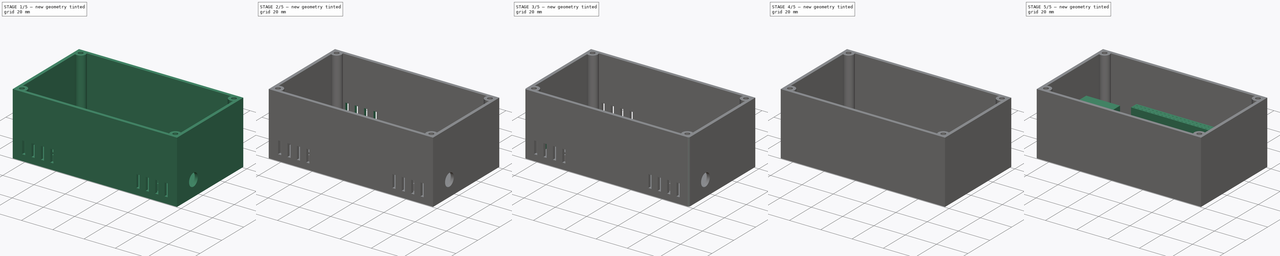
[diagram: build sequence overview — one tinted view per stage of 5, left to right]
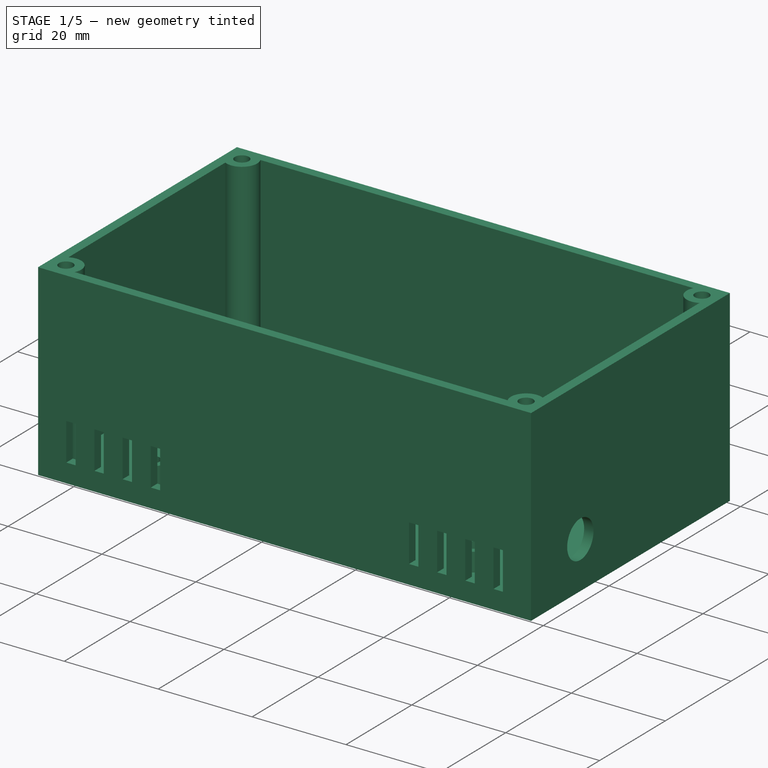
[diagram: stage 1 of 5 — iso view after this stage's code; geometry added in this stage tinted green]
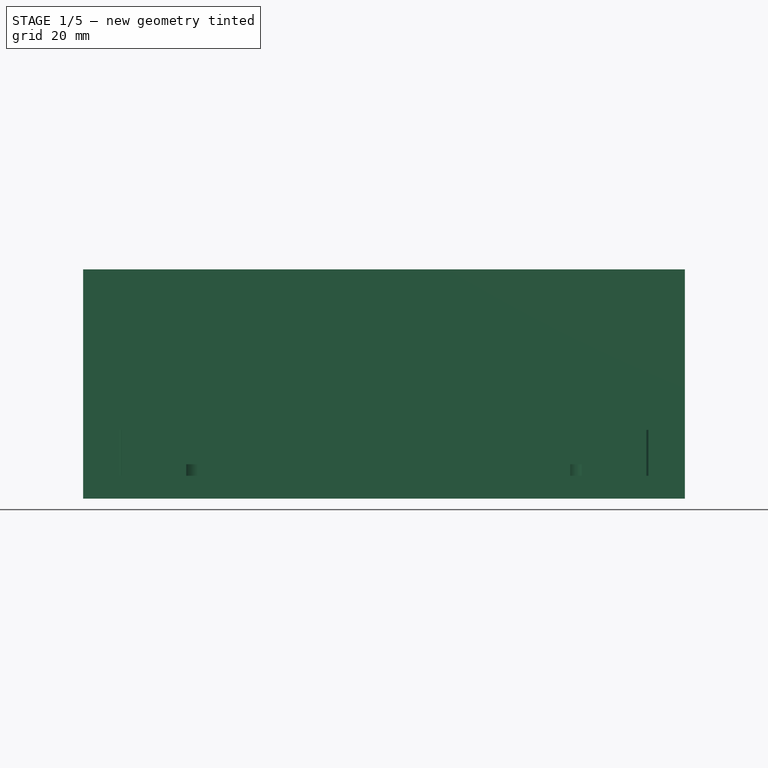
[diagram: stage 1 of 5 — front view after this stage's code; geometry added in this stage tinted green]
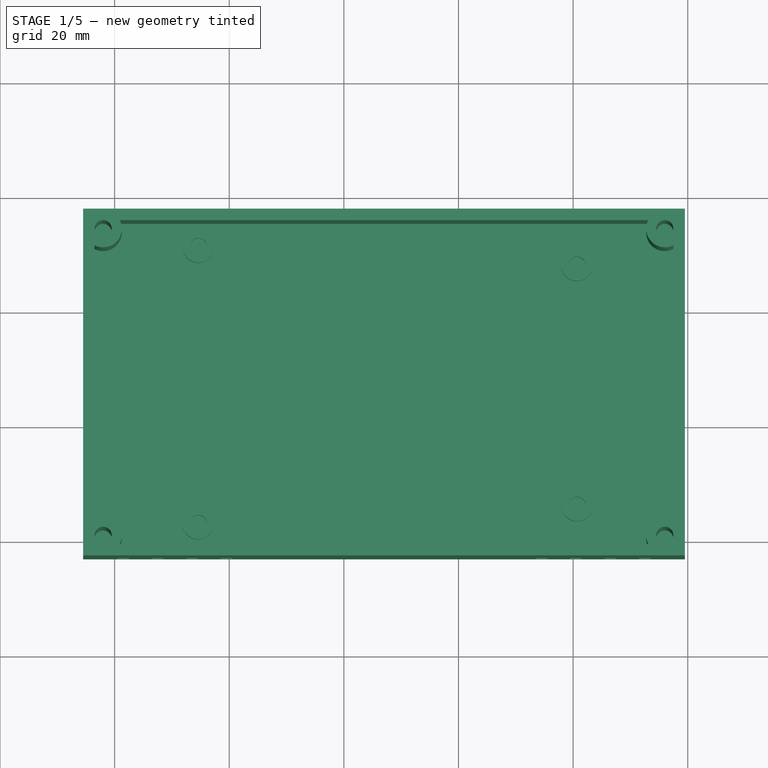
[diagram: stage 1 of 5 — top view after this stage's code; geometry added in this stage tinted green]
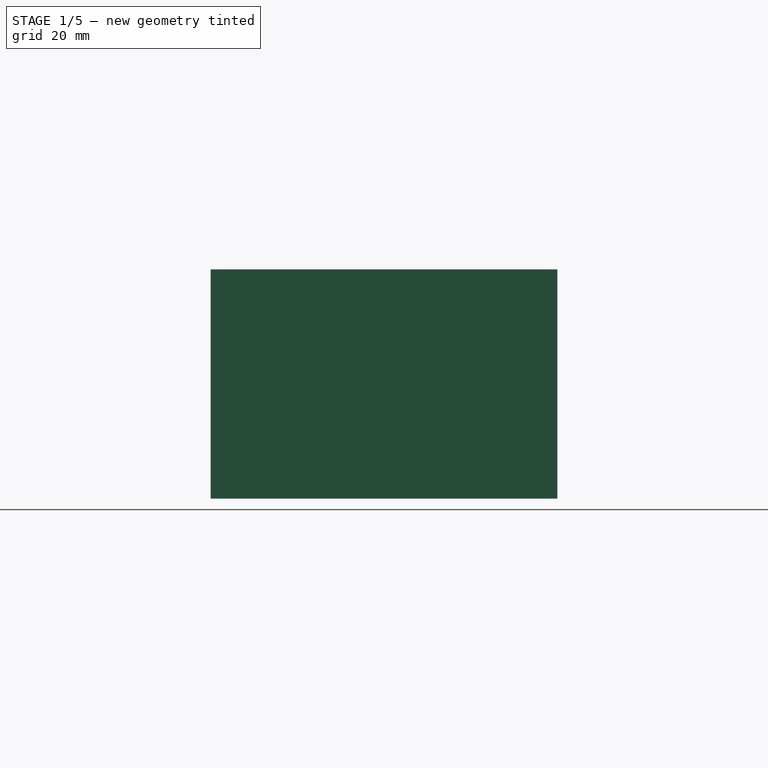
[diagram: stage 1 of 5 — right view after this stage's code; geometry added in this stage tinted green]
FCSTD DOCUMENT
Label: levelingglass_case_prototype
objects: Sketcher::SketchObject×11, PartDesign::Pad×7, PartDesign::Fillet×5, PartDesign::Pocket×4, Part::Feature×2, Part::MultiFuse×1
note: 41 computed .brp shape members not serialized (recipe doc carries the construction recipe); baked Part::Feature solids carry a one-line shape summary decoded from their .brp

FEATURE [Part::Feature] Part__Feature  label="Audio_Cape"
  Placement = pos=(0,0,16) rot=(0,0,1;0rad)
  shape: bbox 89.36 x 54.61 x 8.509 mm, 2185 faces (baked)
FEATURE [Sketcher::SketchObject] Sketch006
  Placement = pos=(0,0,2) rot=(0,0,1;0rad)
  sketch-geometry (8):
    g0: Circle CenterX=-2 CenterY=54 CenterZ=0 NormalX=0 NormalY=0 NormalZ=1 Radius=1.5
    g1: Circle CenterX=96 CenterY=54 CenterZ=0 NormalX=0 NormalY=0 NormalZ=1 Radius=1.5
    g2: Circle CenterX=-2 CenterY=0.5 CenterZ=0 NormalX=0 NormalY=0 NormalZ=1 Radius=1.5
    g3: Circle CenterX=96 CenterY=0.5 CenterZ=0 NormalX=0 NormalY=0 NormalZ=1 Radius=1.5
    g4: Circle CenterX=-2 CenterY=54 CenterZ=0 NormalX=0 NormalY=0 NormalZ=1 Radius=3.25
    g5: Circle CenterX=96 CenterY=54 CenterZ=0 NormalX=0 NormalY=0 NormalZ=1 Radius=3.25
    g6: Circle CenterX=-2 CenterY=0.5 CenterZ=0 NormalX=0 NormalY=0 NormalZ=1 Radius=3.25
    g7: Circle CenterX=96 CenterY=0.5 CenterZ=0 NormalX=0 NormalY=0 NormalZ=1 Radius=3.25
  constraints (20):
    c: Radius(g0) = 1.5
    c: Tangent(g0,g-4)
    c: Tangent(g0,g-3)
    c: Radius(g1) = 1.5
    c: Tangent(g1,g-3)
    c: Tangent(g1,g-6)
    c: Radius(g2) = 1.5
    c: Tangent(g2,g-4)
    c: Tangent(g2,g-5)
    c: Radius(g3) = 1.5
    c: Tangent(g3,g-6)
    c: Tangent(g3,g-5)
    c: Radius(g4) = 3.25
    c: Coincident(g4,g0)
    c: Radius(g5) = 3.25
    c: Coincident(g5,g1)
    c: Radius(g6) = 3.25
    c: Coincident(g6,g2)
    c: Radius(g7) = 3.25
    c: Coincident(g3,g7)
FEATURE [PartDesign::Pad] Pad004  label="Lid Support Bosses"
  Length = 38
  Length2 = 100
  Sketch = -> Sketch006
  Type = 0
FEATURE [Part::Feature] Part__Feature001  label="HR10A-7R-4SB"
  Placement = pos=(93.5,12,10) rot=(0,0,-1;1.5708rad)
  shape: bbox 15.6 x 11.55 x 11.55 mm, 257 faces (baked)
FEATURE [Sketcher::SketchObject] Sketch007
  ExternalGeometry = -> [Pad004]
  Placement = pos=(99.5,0,0) rot=(0.57735,0.57735,0.57735;2.0944rad)
  Support = -> Pad004 [Face3]
  sketch-geometry (1):
    g0: Circle CenterX=12 CenterY=10 CenterZ=0 NormalX=0 NormalY=0 NormalZ=1 Radius=4
  constraints (3):
    c: Radius(g0) = 4
    c: DistanceY(g-1,g0) = 10
    c: Distance(g0,g-3) = 15
FEATURE [PartDesign::Pocket] Pocket001  label="Power Hole"
  Length = 2
  Sketch = -> Sketch007
  Type = 0
FEATURE [Sketcher::SketchObject] Sketch008
  ExternalGeometry = -> [Pocket001]
  Placement = pos=(0,-3,0) rot=(1,0,0;1.5708rad)
  Support = -> Pocket001 [Face10]
  sketch-geometry (38):
    g0: LineSegment StartX=0.5 StartY=12 StartZ=0 EndX=2.5 EndY=12 EndZ=0
    g1: LineSegment StartX=2.5 StartY=12 StartZ=0 EndX=2.5 EndY=4 EndZ=0
    g2: LineSegment StartX=2.5 StartY=4 StartZ=0 EndX=0.5 EndY=4 EndZ=0
    g3: LineSegment StartX=0.5 StartY=4 StartZ=0 EndX=0.5 EndY=12 EndZ=0
    g4: LineSegment StartX=6.5 StartY=12 StartZ=0 EndX=8.5 EndY=12 EndZ=0
    g5: LineSegment StartX=8.5 StartY=12 StartZ=0 EndX=8.5 EndY=4 EndZ=0
    g6: LineSegment StartX=8.5 StartY=4 StartZ=0 EndX=6.5 EndY=4 EndZ=0
    g7: LineSegment StartX=6.5 StartY=4 StartZ=0 EndX=6.5 EndY=12 EndZ=0
    g8: LineSegment StartX=12.5 StartY=12 StartZ=0 EndX=14.5 EndY=12 EndZ=0
    g9: LineSegment StartX=14.5 StartY=12 StartZ=0 EndX=14.5 EndY=4 EndZ=0
    g10: LineSegment StartX=14.5 StartY=4 StartZ=0 EndX=12.5 EndY=4 EndZ=0
    g11: LineSegment StartX=12.5 StartY=4 StartZ=0 EndX=12.5 EndY=12 EndZ=0
    g12: LineSegment StartX=18.5 StartY=12 StartZ=0 EndX=20.5 EndY=12 EndZ=0
    g13: LineSegment StartX=20.5 StartY=12 StartZ=0 EndX=20.5 EndY=4 EndZ=0
    g14: LineSegment StartX=20.5 StartY=4 StartZ=0 EndX=18.5 EndY=4 EndZ=0
    g15: LineSegment StartX=18.5 StartY=4 StartZ=0 EndX=18.5 EndY=12 EndZ=0
    g16: LineSegment [constr] StartX=2.5 StartY=4 StartZ=0 EndX=6.5 EndY=4 EndZ=0
    g17: LineSegment [constr] StartX=8.5 StartY=4 StartZ=0 EndX=12.5 EndY=4 EndZ=0
    g18: LineSegment [constr] StartX=14.5 StartY=4 StartZ=0 EndX=18.5 EndY=4 EndZ=0
    g19: LineSegment StartX=73.5 StartY=12 StartZ=0 EndX=75.5 EndY=12 EndZ=0
    g20: LineSegment StartX=75.5 StartY=12 StartZ=0 EndX=75.5 EndY=4 EndZ=0
    g21: LineSegment StartX=75.5 StartY=4 StartZ=0 EndX=73.5 EndY=4 EndZ=0
    g22: LineSegment StartX=73.5 StartY=4 StartZ=0 EndX=73.5 EndY=12 EndZ=0
    g23: LineSegment StartX=79.5 StartY=12 StartZ=0 EndX=81.5 EndY=12 EndZ=0
    g24: LineSegment StartX=81.5 StartY=12 StartZ=0 EndX=81.5 EndY=4 EndZ=0
    g25: LineSegment StartX=81.5 StartY=4 StartZ=0 EndX=79.5 EndY=4 EndZ=0
    g26: LineSegment StartX=79.5 StartY=4 StartZ=0 EndX=79.5 EndY=12 EndZ=0
    g27: LineSegment StartX=85.5 StartY=12 StartZ=0 EndX=87.5 EndY=12 EndZ=0
    g28: LineSegment StartX=87.5 StartY=12 StartZ=0 EndX=87.5 EndY=4 EndZ=0
    g29: LineSegment StartX=87.5 StartY=4 StartZ=0 EndX=85.5 EndY=4 EndZ=0
    g30: LineSegment StartX=85.5 StartY=4 StartZ=0 EndX=85.5 EndY=12 EndZ=0
    g31: LineSegment StartX=91.5 StartY=12 StartZ=0 EndX=93.5 EndY=12 EndZ=0
    g32: LineSegment StartX=93.5 StartY=12 StartZ=0 EndX=93.5 EndY=4 EndZ=0
    g33: LineSegment StartX=93.5 StartY=4 StartZ=0 EndX=91.5 EndY=4 EndZ=0
    g34: LineSegment StartX=91.5 StartY=4 StartZ=0 EndX=91.5 EndY=12 EndZ=0
    g35: LineSegment [constr] StartX=87.5 StartY=4 StartZ=0 EndX=91.5 EndY=4 EndZ=0
    g36: LineSegment [constr] StartX=75.5 StartY=4 StartZ=0 EndX=79.5 EndY=4 EndZ=0
    g37: LineSegment [constr] StartX=81.5 StartY=4 StartZ=0 EndX=85.5 EndY=4 EndZ=0
  constraints (108):
    c: Coincident(g0,g1)
    c: Coincident(g1,g2)
    c: Coincident(g2,g3)
    c: Coincident(g3,g0)
    c: Horizontal(g0)
    c: Horizontal(g2)
    c: Vertical(g1)
    c: Vertical(g3)
    c: Coincident(g4,g5)
    c: Coincident(g5,g6)
    c: Coincident(g6,g7)
    c: Coincident(g7,g4)
    c: Horizontal(g4)
    c: Horizontal(g6)
    c: Vertical(g5)
    c: Vertical(g7)
    c: Coincident(g8,g9)
    c: Coincident(g9,g10)
    c: Coincident(g10,g11)
    c: Coincident(g11,g8)
    c: Horizontal(g8)
    c: Horizontal(g10)
    c: Vertical(g9)
    c: Vertical(g11)
    c: Coincident(g12,g13)
    c: Coincident(g13,g14)
    c: Coincident(g14,g15)
    c: Coincident(g15,g12)
    c: Horizontal(g12)
    c: Horizontal(g14)
    c: Vertical(g13)
    c: Vertical(g15)
    c: Equal(g0,g4)
    c: Equal(g4,g8)
    c: Equal(g8,g12)
    c: Equal(g3,g7)
    c: Equal(g7,g11)
    c: Equal(g11,g15)
    c: Distance(g2,g-5) = 2
    c: Distance(g2,g-3) = 6
    c: Parallel(g16,g18)
    c: Parallel(g18,g17)
    c: Parallel(g17,g-1)
    c: Equal(g16,g17)
    c: Equal(g17,g18)
    c: Distance(g16) = 4
    c: Coincident(g16,g1)
    c: Coincident(g6,g16)
    c: Coincident(g17,g5)
    c: DistanceX(g2) = -2
    c: Coincident(g10,g17)
    c: Distance(g3) = 8
    c: Coincident(g18,g9)
    c: Coincident(g18,g14)
    c: Coincident(g19,g20)
    c: Coincident(g20,g21)
    c: Coincident(g21,g22)
    c: Coincident(g22,g19)
    c: Horizontal(g19)
    c: Horizontal(g21)
    c: Vertical(g20)
    c: Vertical(g22)
    c: Coincident(g23,g24)
    c: Coincident(g24,g25)
    c: Coincident(g25,g26)
    c: Coincident(g26,g23)
    c: Horizontal(g23)
    c: Horizontal(g25)
    c: Vertical(g24)
    c: Vertical(g26)
    c: Coincident(g27,g28)
    c: Coincident(g28,g29)
    c: Coincident(g29,g30)
    c: Coincident(g30,g27)
    c: Horizontal(g27)
    c: Horizontal(g29)
    c: Vertical(g28)
    c: Vertical(g30)
    c: Coincident(g31,g32)
    c: Coincident(g32,g33)
    c: Coincident(g33,g34)
    c: Coincident(g34,g31)
    c: Horizontal(g31)
    c: Horizontal(g33)
    c: Vertical(g32)
    c: Vertical(g34)
    c: Equal(g22,g26)
    c: Equal(g26,g30)
    c: Equal(g30,g34)
    c: Equal(g34,g3)
    c: Equal(g21,g25)
    c: Equal(g25,g29)
    c: Equal(g29,g33)
    c: Equal(g33,g2)
    c: Distance(g32,g-4) = 6
    c: Distance(g32,g-5) = 2
    c: Equal(g35,g36)
    c: Equal(g36,g37)
    c: Equal(g37,g16)
    c: Parallel(g35,g36)
    c: Parallel(g36,g37)
    c: Parallel(g37,g-1)
    c: Coincident(g35,g33)
    c: Coincident(g28,g35)
    c: Coincident(g37,g29)
    c: Coincident(g24,g37)
    c: Coincident(g36,g25)
    c: Coincident(g20,g36)
FEATURE [PartDesign::Pocket] Pocket002  label="Front Vents"
  Length = 2
  Sketch = -> Sketch008
  Type = 0
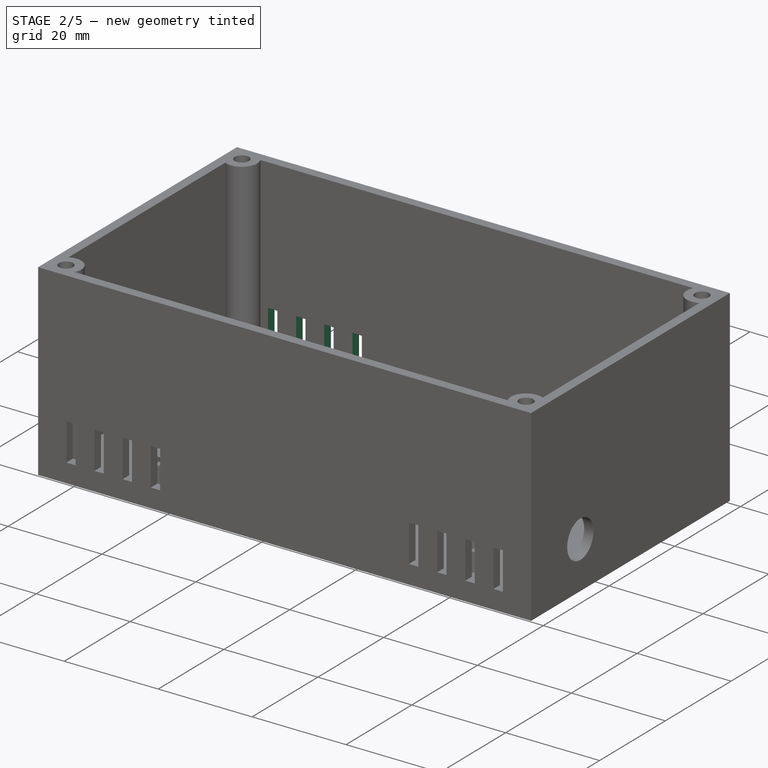
[diagram: stage 2 of 5 — iso view after this stage's code; geometry added in this stage tinted green]
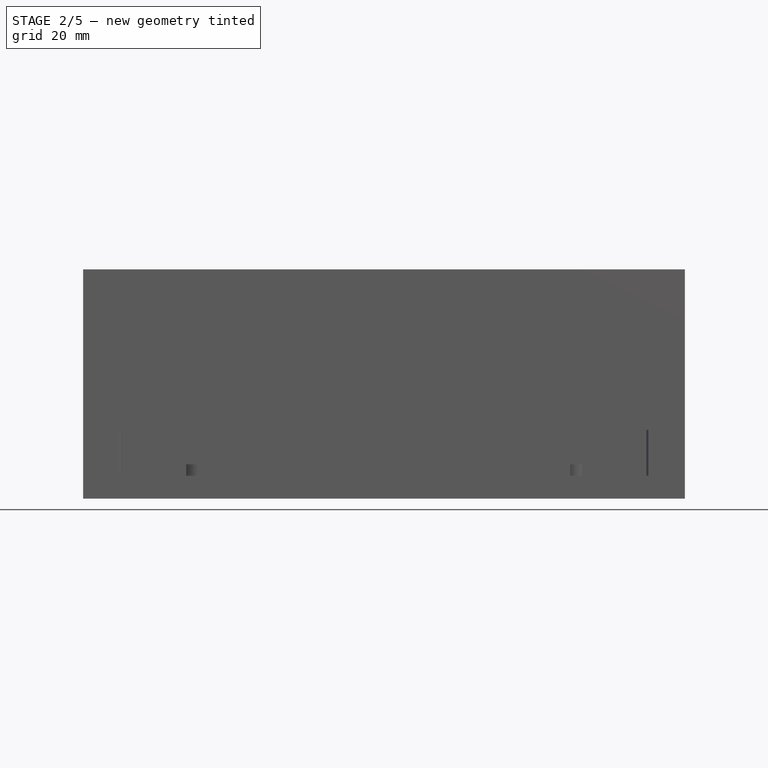
[diagram: stage 2 of 5 — front view after this stage's code; geometry added in this stage tinted green]
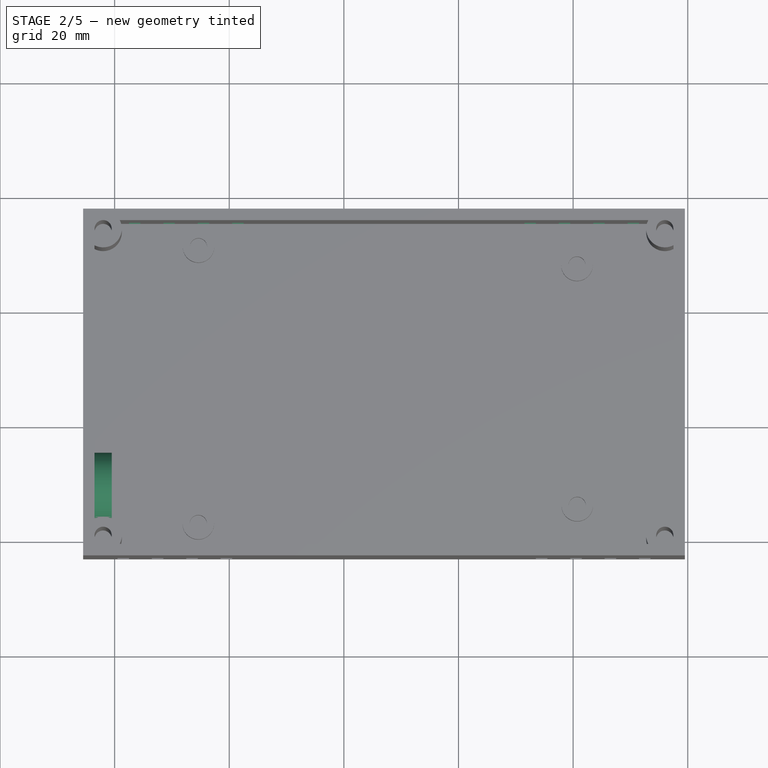
[diagram: stage 2 of 5 — top view after this stage's code; geometry added in this stage tinted green]
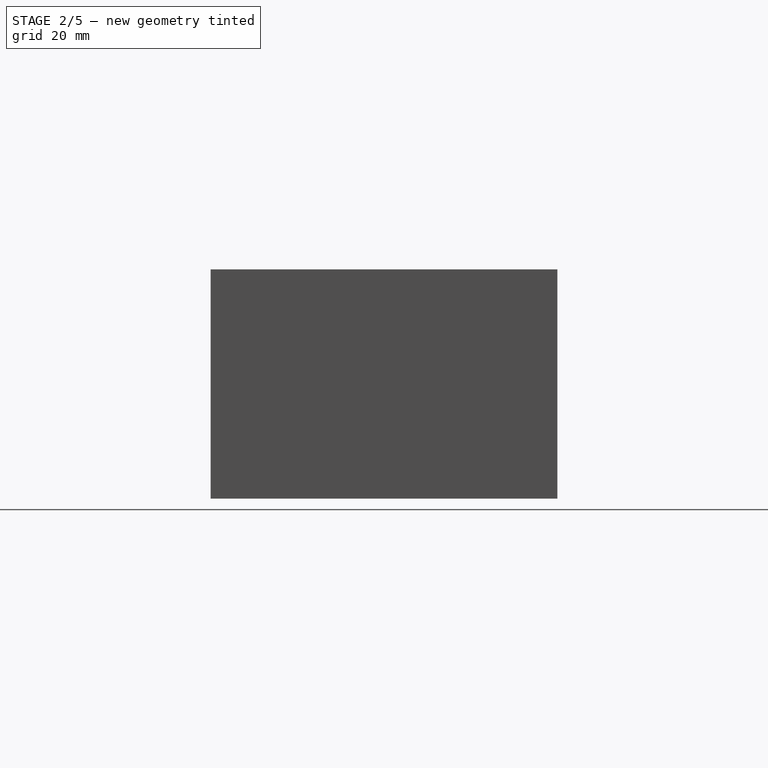
[diagram: stage 2 of 5 — right view after this stage's code; geometry added in this stage tinted green]
FEATURE [Sketcher::SketchObject] Sketch009
  ExternalGeometry = -> [Pocket001]
  Placement = pos=(0,57.5,0) rot=(0,0.707107,0.707107;3.14159rad)
  Support = -> Pocket002 [Face1]
  sketch-geometry (38):
    g0: LineSegment StartX=-22.5 StartY=12 StartZ=0 EndX=-20.5 EndY=12 EndZ=0
    g1: LineSegment StartX=-20.5 StartY=12 StartZ=0 EndX=-20.5 EndY=4 EndZ=0
    g2: LineSegment StartX=-20.5 StartY=4 StartZ=0 EndX=-22.5 EndY=4 EndZ=0
    g3: LineSegment StartX=-22.5 StartY=4 StartZ=0 EndX=-22.5 EndY=12 EndZ=0
    g4: LineSegment StartX=-16.5 StartY=12 StartZ=0 EndX=-14.5 EndY=12 EndZ=0
    g5: LineSegment StartX=-14.5 StartY=12 StartZ=0 EndX=-14.5 EndY=4 EndZ=0
    g6: LineSegment StartX=-14.5 StartY=4 StartZ=0 EndX=-16.5 EndY=4 EndZ=0
    g7: LineSegment StartX=-16.5 StartY=4 StartZ=0 EndX=-16.5 EndY=12 EndZ=0
    g8: LineSegment StartX=-10.5 StartY=12 StartZ=0 EndX=-8.5 EndY=12 EndZ=0
    g9: LineSegment StartX=-8.5 StartY=12 StartZ=0 EndX=-8.5 EndY=4 EndZ=0
    g10: LineSegment StartX=-8.5 StartY=4 StartZ=0 EndX=-10.5 EndY=4 EndZ=0
    g11: LineSegment StartX=-10.5 StartY=4 StartZ=0 EndX=-10.5 EndY=12 EndZ=0
    g12: LineSegment StartX=-4.5 StartY=12 StartZ=0 EndX=-2.5 EndY=12 EndZ=0
    g13: LineSegment StartX=-2.5 StartY=12 StartZ=0 EndX=-2.5 EndY=4 EndZ=0
    g14: LineSegment StartX=-2.5 StartY=4 StartZ=0 EndX=-4.5 EndY=4 EndZ=0
    g15: LineSegment StartX=-4.5 StartY=4 StartZ=0 EndX=-4.5 EndY=12 EndZ=0
    g16: LineSegment [constr] StartX=-20.5 StartY=4 StartZ=0 EndX=-16.5 EndY=4 EndZ=0
    g17: LineSegment [constr] StartX=-14.5 StartY=4 StartZ=0 EndX=-10.5 EndY=4 EndZ=0
    g18: LineSegment [constr] StartX=-8.5 StartY=4 StartZ=0 EndX=-4.5 EndY=4 EndZ=0
    g19: LineSegment StartX=-91.5 StartY=12 StartZ=0 EndX=-89.5 EndY=12 EndZ=0
    g20: LineSegment StartX=-89.5 StartY=12 StartZ=0 EndX=-89.5 EndY=4 EndZ=0
    g21: LineSegment StartX=-89.5 StartY=4 StartZ=0 EndX=-91.5 EndY=4 EndZ=0
    g22: LineSegment StartX=-91.5 StartY=4 StartZ=0 EndX=-91.5 EndY=12 EndZ=0
    g23: LineSegment StartX=-85.5 StartY=12 StartZ=0 EndX=-83.5 EndY=12 EndZ=0
    g24: LineSegment StartX=-83.5 StartY=12 StartZ=0 EndX=-83.5 EndY=4 EndZ=0
    g25: LineSegment StartX=-83.5 StartY=4 StartZ=0 EndX=-85.5 EndY=4 EndZ=0
    g26: LineSegment StartX=-85.5 StartY=4 StartZ=0 EndX=-85.5 EndY=12 EndZ=0
    g27: LineSegment StartX=-79.5 StartY=12 StartZ=0 EndX=-77.5 EndY=12 EndZ=0
    g28: LineSegment StartX=-77.5 StartY=12 StartZ=0 EndX=-77.5 EndY=4 EndZ=0
    g29: LineSegment StartX=-77.5 StartY=4 StartZ=0 EndX=-79.5 EndY=4 EndZ=0
    g30: LineSegment StartX=-79.5 StartY=4 StartZ=0 EndX=-79.5 EndY=12 EndZ=0
    g31: LineSegment StartX=-73.5 StartY=12 StartZ=0 EndX=-71.5 EndY=12 EndZ=0
    g32: LineSegment StartX=-71.5 StartY=12 StartZ=0 EndX=-71.5 EndY=4 EndZ=0
    g33: LineSegment StartX=-71.5 StartY=4 StartZ=0 EndX=-73.5 EndY=4 EndZ=0
    g34: LineSegment StartX=-73.5 StartY=4 StartZ=0 EndX=-73.5 EndY=12 EndZ=0
    g35: LineSegment [constr] StartX=-83.5 StartY=4 StartZ=0 EndX=-79.5 EndY=4 EndZ=0
    g36: LineSegment [constr] StartX=-77.5 StartY=4 StartZ=0 EndX=-73.5 EndY=4 EndZ=0
    g37: LineSegment [constr] StartX=-89.5 StartY=4 StartZ=0 EndX=-85.5 EndY=4 EndZ=0
  constraints (108):
    c: Coincident(g0,g1)
    c: Coincident(g1,g2)
    c: Coincident(g2,g3)
    c: Coincident(g3,g0)
    c: Horizontal(g0)
    c: Horizontal(g2)
    c: Vertical(g1)
    c: Vertical(g3)
    c: Coincident(g4,g5)
    c: Coincident(g5,g6)
    c: Coincident(g6,g7)
    c: Coincident(g7,g4)
    c: Horizontal(g4)
    c: Horizontal(g6)
    c: Vertical(g5)
    c: Vertical(g7)
    c: Coincident(g8,g9)
    c: Coincident(g9,g10)
    c: Coincident(g10,g11)
    c: Coincident(g11,g8)
    c: Horizontal(g8)
    c: Horizontal(g10)
    c: Vertical(g9)
    c: Vertical(g11)
    c: Coincident(g12,g13)
    c: Coincident(g13,g14)
    c: Coincident(g14,g15)
    c: Coincident(g15,g12)
    c: Horizontal(g12)
    c: Horizontal(g14)
    c: Vertical(g13)
    c: Vertical(g15)
    c: Equal(g0,g4)
    c: Equal(g4,g8)
    c: Equal(g8,g12)
    c: Equal(g3,g7)
    c: Equal(g7,g11)
    c: Equal(g11,g15)
    c: Parallel(g16,g18)
    c: Parallel(g18,g17)
    c: Parallel(g17,g-1)
    c: Equal(g16,g17)
    c: Equal(g17,g18)
    c: Distance(g16) = 4
    c: Coincident(g16,g1)
    c: Coincident(g6,g16)
    c: Coincident(g17,g5)
    c: DistanceX(g2) = -2
    c: Coincident(g10,g17)
    c: Distance(g3) = 8
    c: Coincident(g18,g9)
    c: Coincident(g18,g14)
    c: Distance(g13,g-3) = 8
    c: Distance(g13,g-5) = 2
    c: Coincident(g19,g20)
    c: Coincident(g20,g21)
    c: Coincident(g21,g22)
    c: Coincident(g22,g19)
    c: Horizontal(g19)
    c: Horizontal(g21)
    c: Vertical(g20)
    c: Vertical(g22)
    c: Coincident(g23,g24)
    c: Coincident(g24,g25)
    c: Coincident(g25,g26)
    c: Coincident(g26,g23)
    c: Horizontal(g23)
    c: Horizontal(g25)
    c: Vertical(g24)
    c: Vertical(g26)
    c: Coincident(g27,g28)
    c: Coincident(g28,g29)
    c: Coincident(g29,g30)
    c: Coincident(g30,g27)
    c: Horizontal(g27)
    c: Horizontal(g29)
    c: Vertical(g28)
    c: Vertical(g30)
    c: Coincident(g31,g32)
    c: Coincident(g32,g33)
    c: Coincident(g33,g34)
    c: Coincident(g34,g31)
    c: Horizontal(g31)
    c: Horizontal(g33)
    c: Vertical(g32)
    c: Vertical(g34)
    c: Equal(g3,g32)
    c: Equal(g32,g28)
    c: Equal(g28,g24)
    c: Equal(g24,g20)
    c: Equal(g33,g2)
    c: Equal(g2,g29)
    c: Equal(g29,g25)
    c: Equal(g25,g21)
    c: Distance(g21,g-4) = 8
    c: Distance(g21,g-5) = 2
    c: Parallel(g37,g35)
    c: Parallel(g35,g36)
    c: Parallel(g36,g-1)
    c: Equal(g37,g35)
    c: Equal(g35,g36)
    c: Equal(g36,g16)
    c: Coincident(g20,g37)
    c: Coincident(g25,g37)
    c: Coincident(g35,g24)
    c: Coincident(g29,g35)
    c: Coincident(g36,g28)
    c: Coincident(g36,g33)
FEATURE [PartDesign::Pocket] Pocket003  label="Rear Vents"
  Length = 2
  Sketch = -> Sketch009
  Type = 0
FEATURE [Sketcher::SketchObject] Sketch010
  ExternalGeometry = -> [Pocket003]
  Placement = pos=(-5.5,0,0) rot=(0.57735,-0.57735,-0.57735;2.0944rad)
  Support = -> Pocket003 [Face9]
  sketch-geometry (1):
    g0: Circle CenterX=-9 CenterY=20.25 CenterZ=0 NormalX=0 NormalY=0 NormalZ=1 Radius=4.25
  constraints (3):
    c: Radius(g0) = 4.25
    c: DistanceY(g-1,g0) = 20.25
    c: Distance(g0,g-4) = 12
FEATURE [PartDesign::Pocket] Pocket004  label="Jack Cutout"
  Length = 2
  Sketch = -> Sketch010
  Type = 0
FEATURE [Sketcher::SketchObject] Sketch011
  ExternalGeometry = -> [Pocket004]
  Placement = pos=(-3.5,0,0) rot=(0.57735,0.57735,0.57735;2.0944rad)
  Support = -> Pocket004 [Face47]
  sketch-geometry (2):
    g0: Circle CenterX=9 CenterY=20.25 CenterZ=0 NormalX=0 NormalY=0 NormalZ=1 Radius=4.25
    g1: Circle CenterX=9 CenterY=20.25 CenterZ=0 NormalX=0 NormalY=0 NormalZ=1 Radius=6.25
  constraints (4):
    c: Coincident(g0,g-3)
    c: Equal(g0,g-3)
    c: Coincident(g1,g0)
    c: Radius(g1) = 6.25
FEATURE [PartDesign::Pad] Pad005  label="Jack Collar"
  Length = 3
  Length2 = 100
  Sketch = -> Sketch011
  Type = 0
FEATURE [Sketcher::SketchObject] Sketch012
  ExternalGeometry = -> [Pad005]
  Placement = pos=(-0.5,0,0) rot=(0.57735,0.57735,0.57735;2.0944rad)
  Support = -> Pad005 [Face106]
  sketch-geometry (2):
    g0: Circle CenterX=9 CenterY=20.25 CenterZ=0 NormalX=0 NormalY=0 NormalZ=1 Radius=4.25
    g1: Circle CenterX=9 CenterY=20.25 CenterZ=0 NormalX=0 NormalY=0 NormalZ=1 Radius=2.75
  constraints (4):
    c: Coincident(g-3,g0)
    c: Equal(g-3,g0)
    c: Coincident(g1,g-3)
    c: Radius(g1) = 2.75
FEATURE [PartDesign::Pad] Pad006  label="Jack Hole"
  Length = 2
  Length2 = 100
  Reversed = true
  Sketch = -> Sketch012
  Type = 0
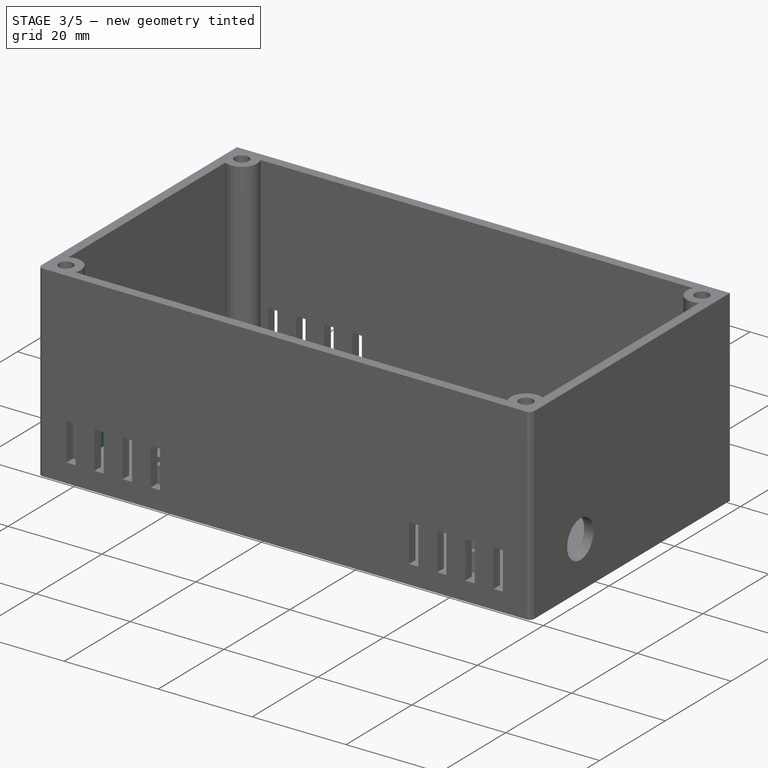
[diagram: stage 3 of 5 — iso view after this stage's code; geometry added in this stage tinted green]
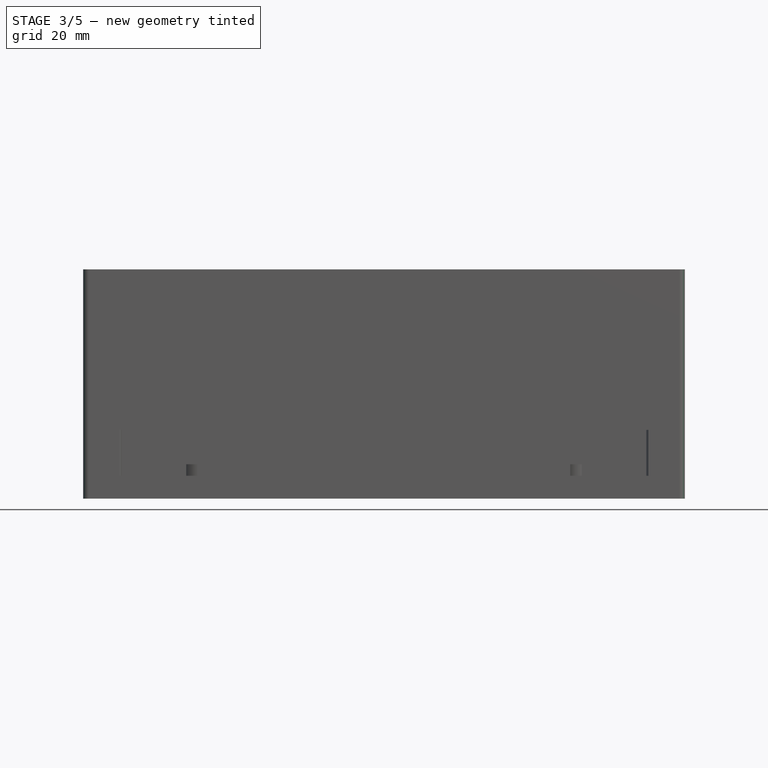
[diagram: stage 3 of 5 — front view after this stage's code; geometry added in this stage tinted green]
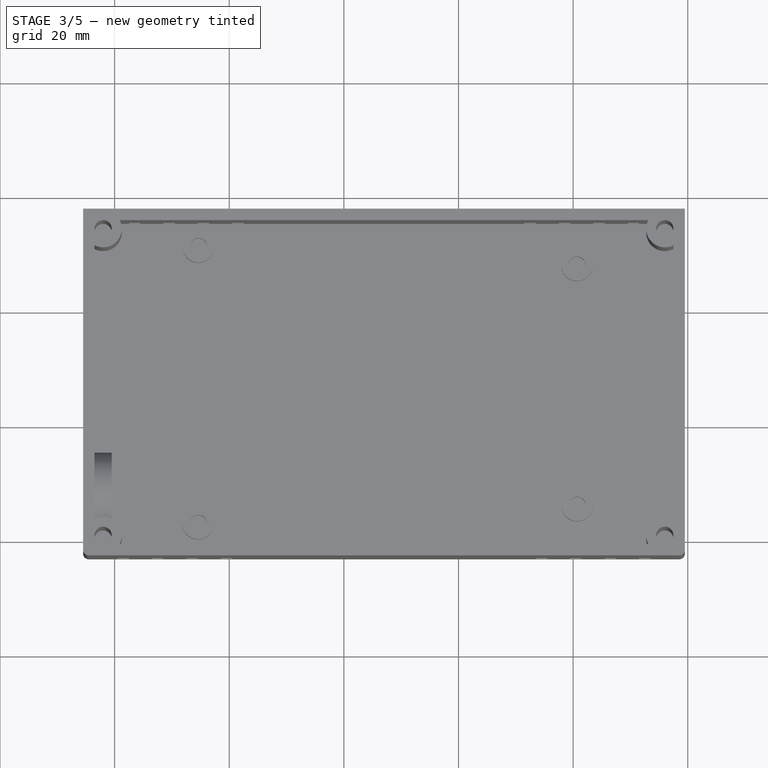
[diagram: stage 3 of 5 — top view after this stage's code; geometry added in this stage tinted green]
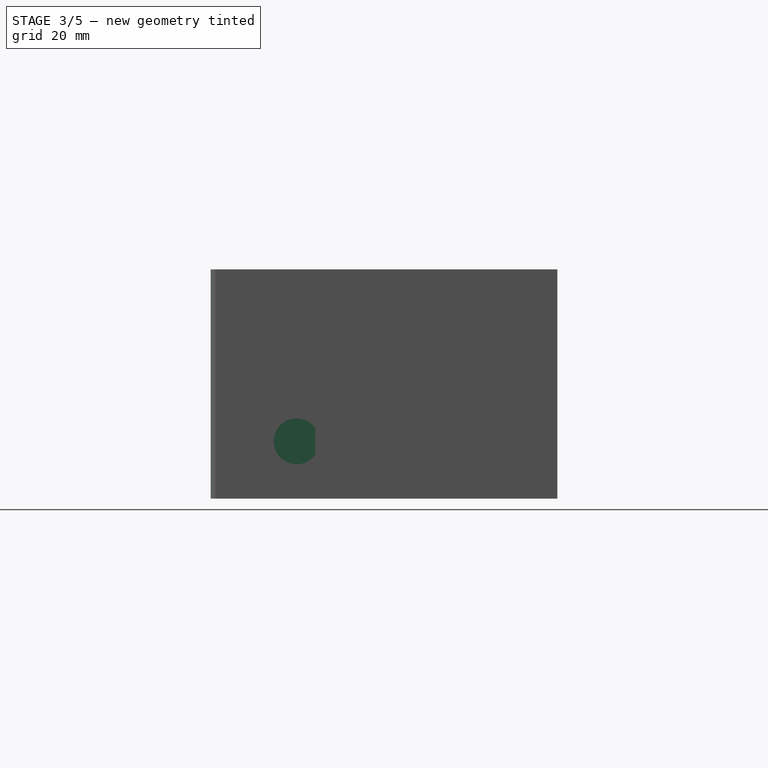
[diagram: stage 3 of 5 — right view after this stage's code; geometry added in this stage tinted green]
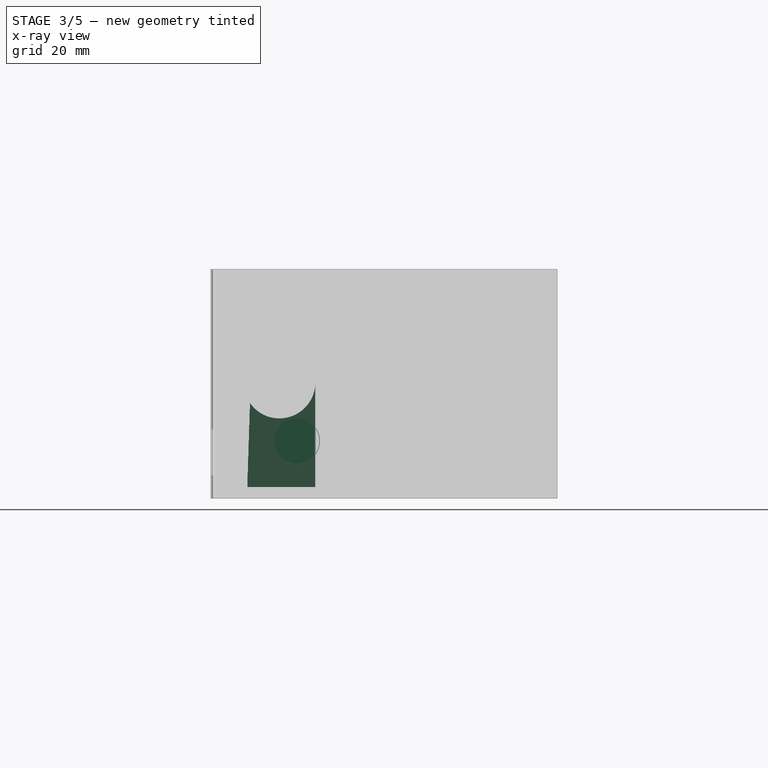
[diagram: stage 3 of 5 — x-ray composite at the right view; earlier geometry ghosted, this stage's added geometry solid]
FEATURE [Sketcher::SketchObject] Sketch013
  ExternalGeometry = -> [Pad006]
  Placement = pos=(-0.5,0,0) rot=(0.57735,0.57735,0.57735;2.0944rad)
  Support = -> Pad006 [Face110]
  sketch-geometry (4):
    g0: LineSegment StartX=15.25 StartY=20.25 StartZ=0 EndX=15.25 EndY=2 EndZ=0
    g1: LineSegment StartX=15.25 StartY=2 StartZ=0 EndX=3.38314 EndY=2 EndZ=0
    g2: LineSegment StartX=3.38314 StartY=2 StartZ=0 EndX=3.38314 EndY=17.5089 EndZ=0
    g3: ArcOfCircle CenterX=9 CenterY=20.25 CenterZ=0 NormalX=0 NormalY=0 NormalZ=1 Radius=6.25 StartAngle=3.5956 EndAngle=6.28319
  constraints (12):
    c: Coincident(g0,g1)
    c: Coincident(g1,g2)
    c: Horizontal(g1)
    c: Vertical(g0)
    c: Vertical(g2)
    c: Equal(g3,g-4)
    c: PointOnObject(g1,g-5)
    c: Coincident(g3,g0)
    c: Coincident(g-4,g3)
    c: Coincident(g0,g-4)
    c: Coincident(g-4,g3)
    c: Coincident(g2,g3)
FEATURE [PartDesign::Pad] Pad007  label="Jack Support"
  Length = 3
  Length2 = 100
  Reversed = true
  Sketch = -> Sketch013
  Type = 0
FEATURE [PartDesign::Fillet] Fillet
  Base = -> Pad007 [Edge53]
  Radius = 1
FEATURE [PartDesign::Fillet] Fillet001
  Base = -> Fillet [Edge60]
  Radius = 1
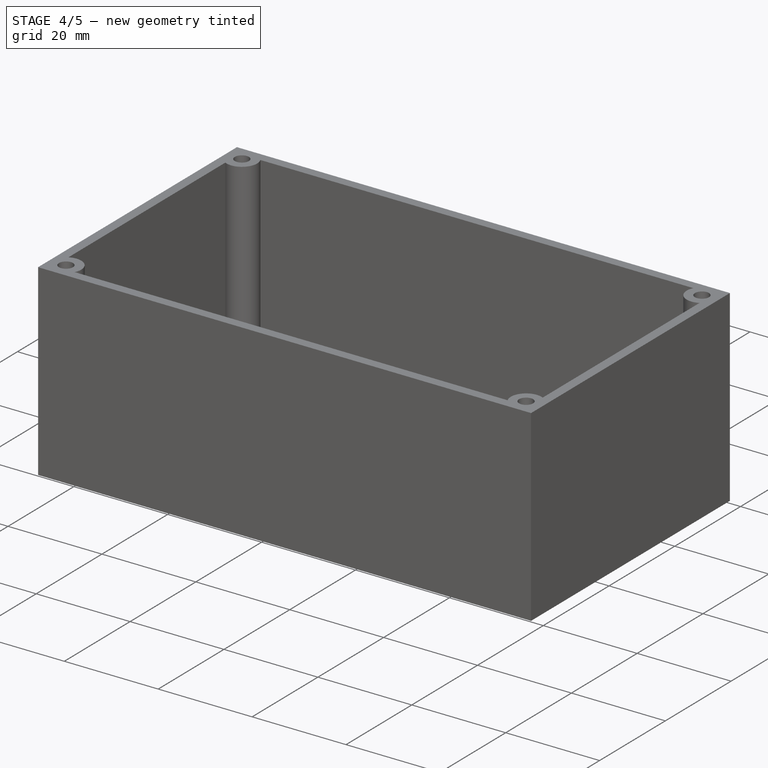
[diagram: stage 4 of 5 — iso view after this stage's code; geometry added in this stage tinted green]
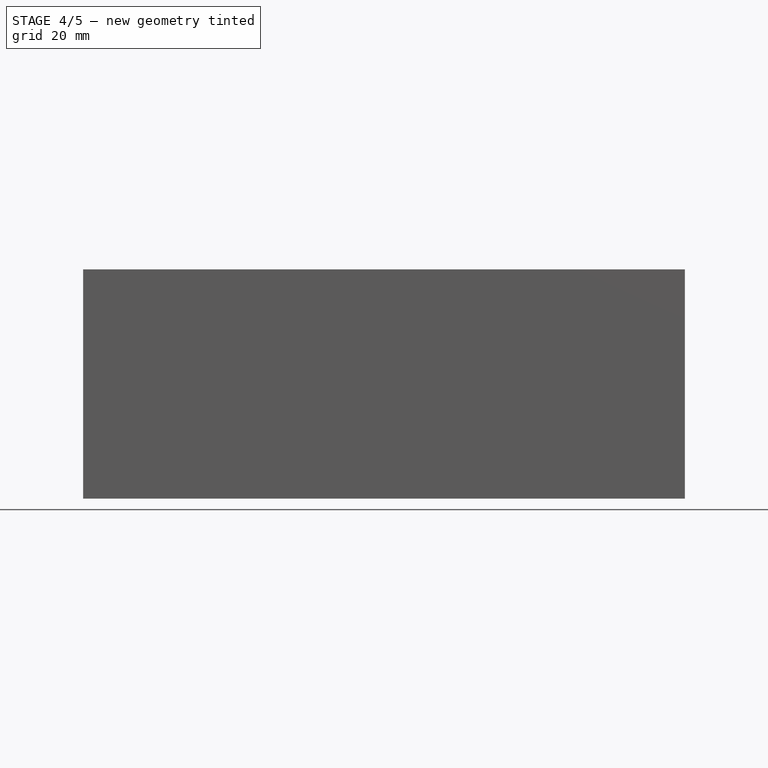
[diagram: stage 4 of 5 — front view after this stage's code; geometry added in this stage tinted green]
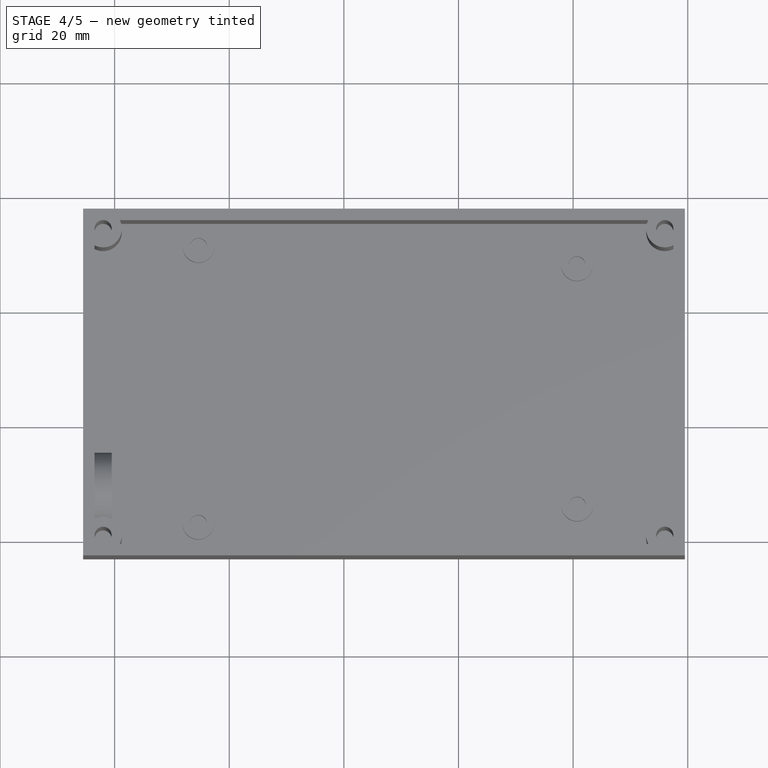
[diagram: stage 4 of 5 — top view after this stage's code; geometry added in this stage tinted green]
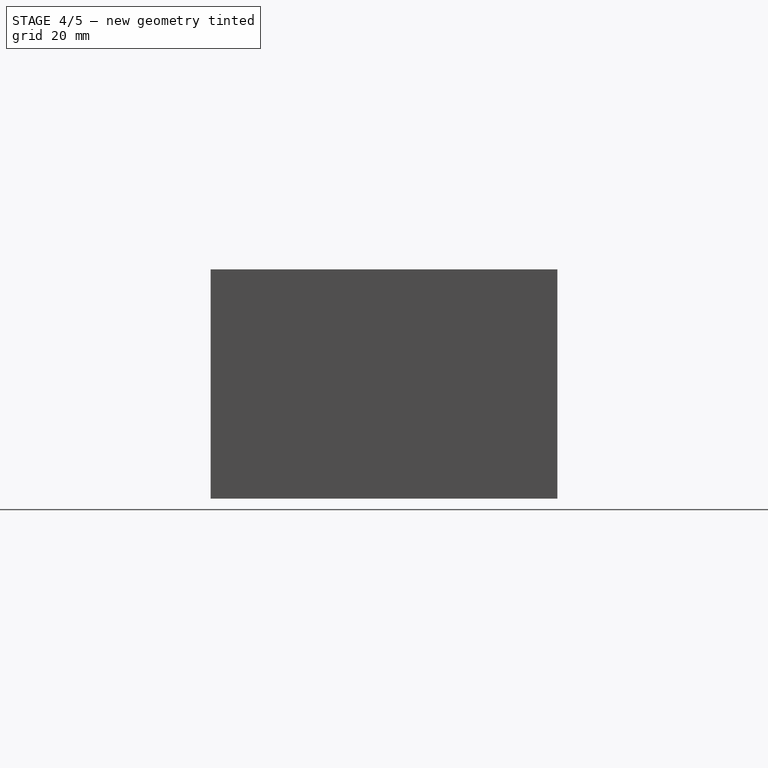
[diagram: stage 4 of 5 — right view after this stage's code; geometry added in this stage tinted green]
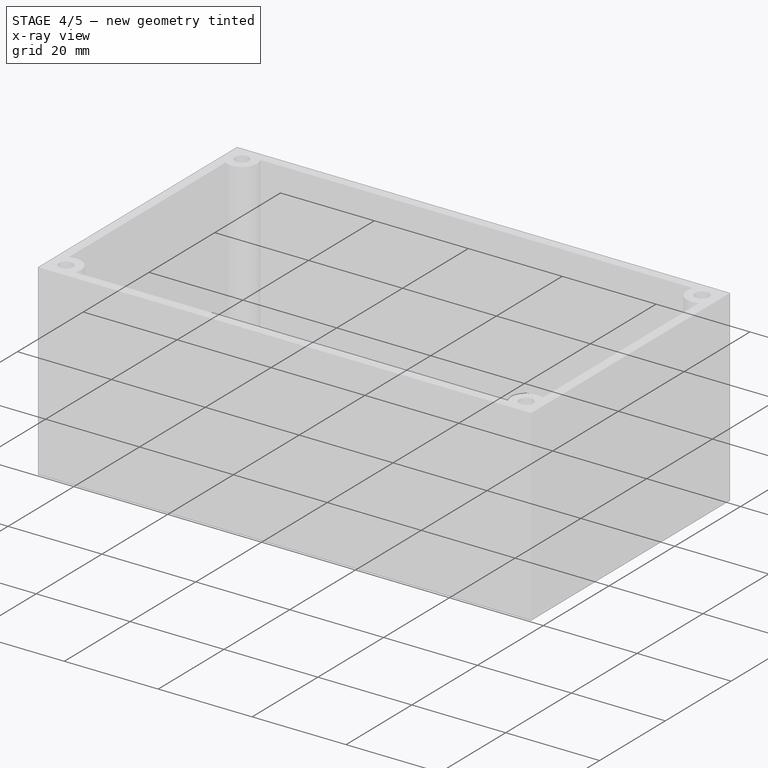
[diagram: stage 4 of 5 — x-ray composite at the iso view; earlier geometry ghosted, this stage's added geometry solid]
FEATURE [PartDesign::Pad] Pad  label="Walls"
  Length = 40
  Length2 = 100
  Sketch = -> Sketch
  Type = 0
FEATURE [PartDesign::Fillet] Fillet002
  Base = -> Fillet001 [Edge62]
  Radius = 1
FEATURE [PartDesign::Fillet] Fillet003
  Base = -> Fillet002 [Edge34]
  Radius = 1
FEATURE [PartDesign::Fillet] Fillet004
  Base = -> Fillet003 [Edge4]
  Radius = 0.5
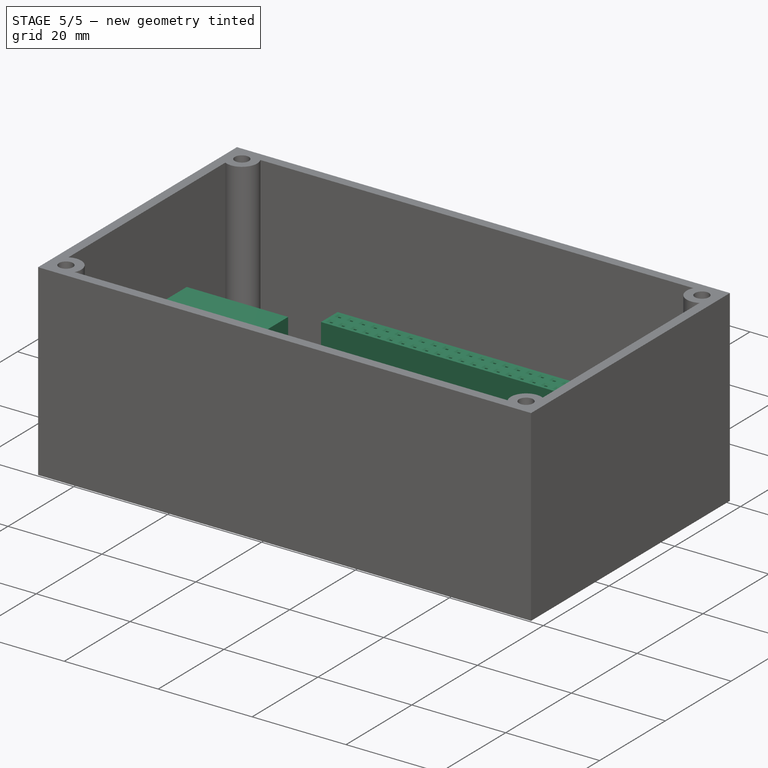
[diagram: stage 5 of 5 — iso view after this stage's code; geometry added in this stage tinted green]
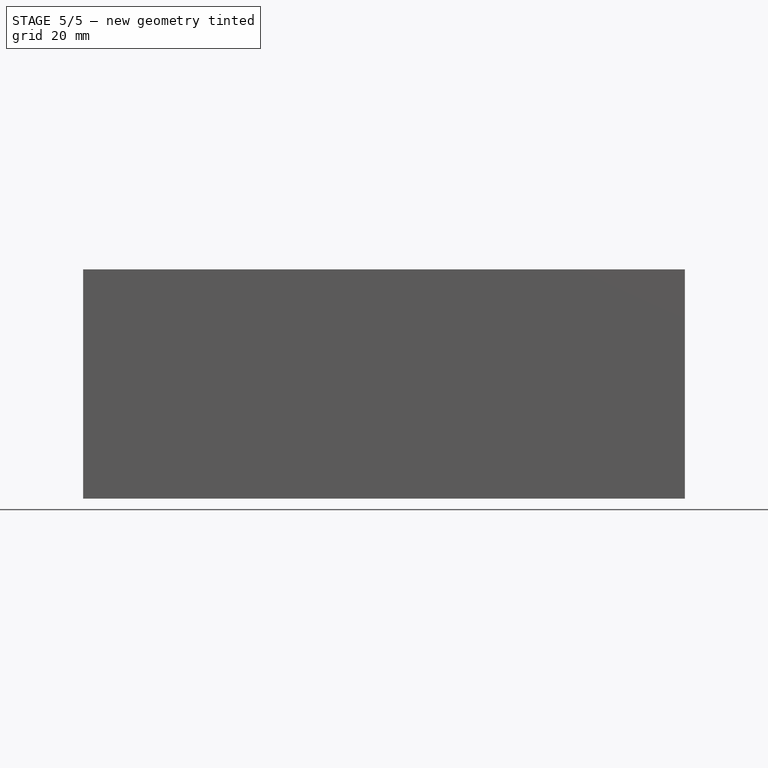
[diagram: stage 5 of 5 — front view after this stage's code; geometry added in this stage tinted green]
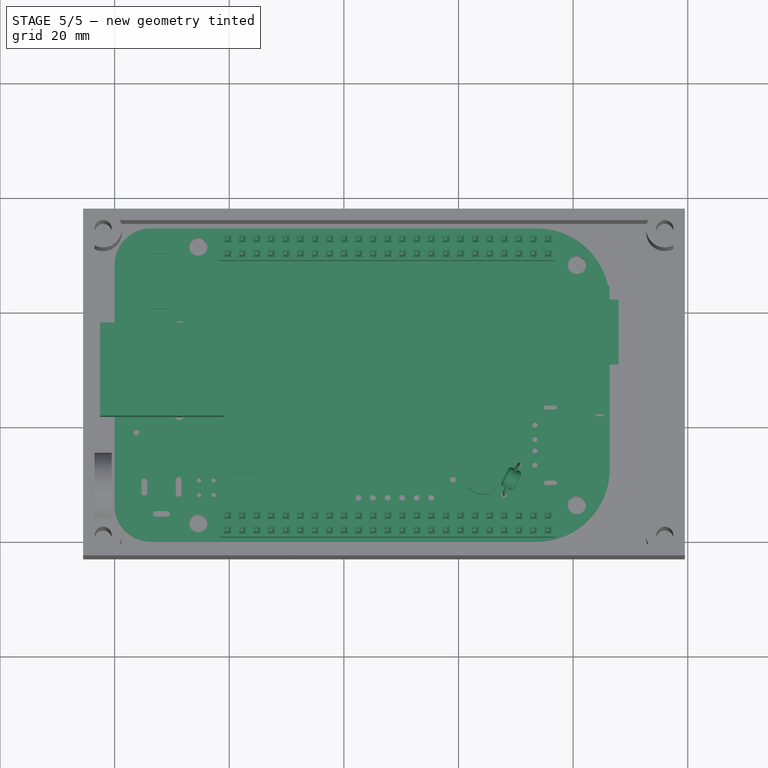
[diagram: stage 5 of 5 — top view after this stage's code; geometry added in this stage tinted green]
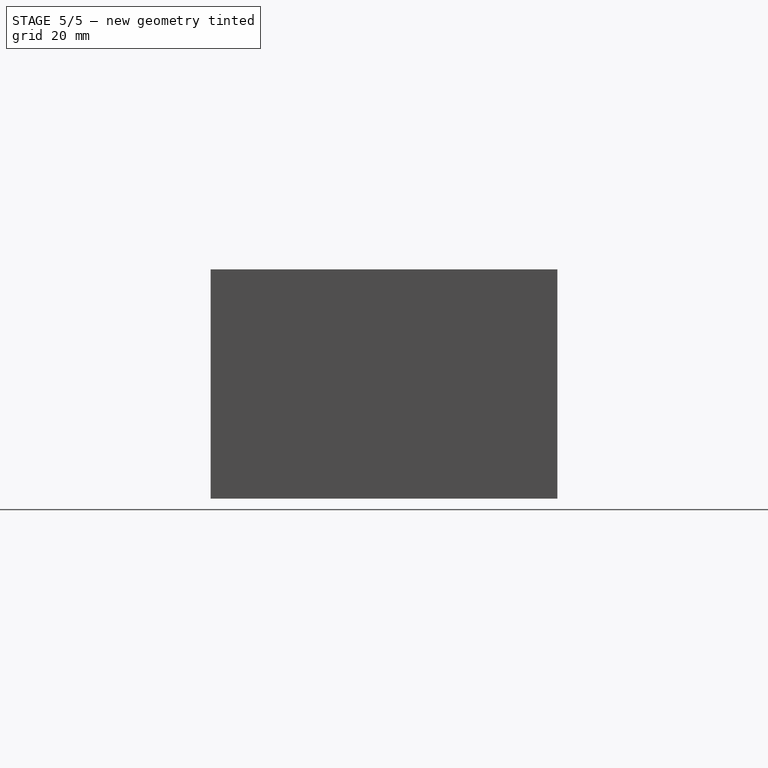
[diagram: stage 5 of 5 — right view after this stage's code; geometry added in this stage tinted green]
FEATURE [Sketcher::SketchObject] Sketch
  sketch-geometry (8):
    g0: LineSegment StartX=-3.5 StartY=55.5 StartZ=0 EndX=97.5 EndY=55.5 EndZ=0
    g1: LineSegment StartX=97.5 StartY=55.5 StartZ=0 EndX=97.5 EndY=-1 EndZ=0
    g2: LineSegment StartX=97.5 StartY=-1 StartZ=0 EndX=-3.5 EndY=-1 EndZ=0
    g3: LineSegment StartX=-3.5 StartY=-1 StartZ=0 EndX=-3.5 EndY=55.5 EndZ=0
    g4: LineSegment StartX=-5.5 StartY=57.5 StartZ=0 EndX=99.5 EndY=57.5 EndZ=0
    g5: LineSegment StartX=99.5 StartY=57.5 StartZ=0 EndX=99.5 EndY=-3 EndZ=0
    g6: LineSegment StartX=99.5 StartY=-3 StartZ=0 EndX=-5.5 EndY=-3 EndZ=0
    g7: LineSegment StartX=-5.5 StartY=-3 StartZ=0 EndX=-5.5 EndY=57.5 EndZ=0
  constraints (24):
    c: Coincident(g0,g1)
    c: Coincident(g1,g2)
    c: Coincident(g2,g3)
    c: Coincident(g3,g0)
    c: Horizontal(g0)
    c: Horizontal(g2)
    c: Vertical(g1)
    c: Vertical(g3)
    c: DistanceX(g-2,g0) = -3.5
    c: Coincident(g4,g5)
    c: Coincident(g5,g6)
    c: Coincident(g6,g7)
    c: Coincident(g7,g4)
    c: Horizontal(g4)
    c: Horizontal(g6)
    c: Vertical(g5)
    c: Vertical(g7)
    c: DistanceY(g4,g0) = -2
    c: DistanceY(g1,g5) = -2
    c: DistanceX(g1,g5) = 2
    c: DistanceX(g4,g0) = 2
    c: DistanceY(g-1,g2) = -1
    c: DistanceY(g5) = -60.5
    c: DistanceX(g4) = 105
FEATURE [Part::MultiFuse] Fusion  label="BBB"
  Placement = pos=(0,0,7.5) rot=(0,0,1;0rad)
FEATURE [Sketcher::SketchObject] Sketch001
  ExternalGeometry = -> [Pad]
  Placement = pos=(0,0,0) rot=(1,0,0;3.14159rad)
  Support = -> Pad [Face9]
  sketch-geometry (4):
    g0: LineSegment StartX=-5.5 StartY=3 StartZ=0 EndX=99.5 EndY=3 EndZ=0
    g1: LineSegment StartX=99.5 StartY=3 StartZ=0 EndX=99.5 EndY=-57.5 EndZ=0
    g2: LineSegment StartX=99.5 StartY=-57.5 StartZ=0 EndX=-5.5 EndY=-57.5 EndZ=0
    g3: LineSegment StartX=-5.5 StartY=-57.5 StartZ=0 EndX=-5.5 EndY=3 EndZ=0
  constraints (10):
    c: Coincident(g0,g1)
    c: Coincident(g1,g2)
    c: Coincident(g2,g3)
    c: Coincident(g3,g0)
    c: Horizontal(g0)
    c: Horizontal(g2)
    c: Vertical(g1)
    c: Vertical(g3)
    c: Coincident(g0,g-4)
    c: Coincident(g-6,g1)
FEATURE [PartDesign::Pad] Pad001  label="Base"
  Length = 2
  Length2 = 100
  Reversed = true
  Sketch = -> Sketch001
  Type = 0
FEATURE [Sketcher::SketchObject] Sketch002
  Placement = pos=(0,0,2) rot=(0,0,1;0rad)
  Support = -> Pad001 [Face14]
  sketch-geometry (8):
    g0: Circle CenterX=14.6339 CenterY=51.4502 CenterZ=0 NormalX=0 NormalY=0 NormalZ=1 Radius=1.5
    g1: Circle CenterX=14.6339 CenterY=51.4502 CenterZ=0 NormalX=0 NormalY=0 NormalZ=1 Radius=2.75
    g2: Circle CenterX=80.6614 CenterY=48.2458 CenterZ=0 NormalX=0 NormalY=0 NormalZ=1 Radius=1.5
    g3: Circle CenterX=80.6614 CenterY=48.2458 CenterZ=0 NormalX=0 NormalY=0 NormalZ=1 Radius=2.75
    g4: Circle CenterX=14.6011 CenterY=3.14712 CenterZ=0 NormalX=0 NormalY=0 NormalZ=1 Radius=1.5
    g5: Circle CenterX=14.6011 CenterY=3.14712 CenterZ=0 NormalX=0 NormalY=0 NormalZ=1 Radius=2.75
    g6: Circle CenterX=80.7179 CenterY=6.31046 CenterZ=0 NormalX=0 NormalY=0 NormalZ=1 Radius=1.5
    g7: Circle CenterX=80.7179 CenterY=6.31046 CenterZ=0 NormalX=0 NormalY=0 NormalZ=1 Radius=2.75
  constraints (12):
    c: Radius(g0) = 1.5
    c: Radius(g1) = 2.75
    c: Coincident(g1,g0)
    c: Radius(g2) = 1.5
    c: Radius(g3) = 2.75
    c: Coincident(g3,g2)
    c: Radius(g4) = 1.5
    c: Radius(g5) = 2.75
    c: Coincident(g4,g5)
    c: Radius(g6) = 1.5
    c: Radius(g7) = 2.75
    c: Coincident(g6,g7)
FEATURE [PartDesign::Pad] Pad002  label="Supports"
  Length = 4
  Length2 = 100
  Sketch = -> Sketch002
  Type = 0
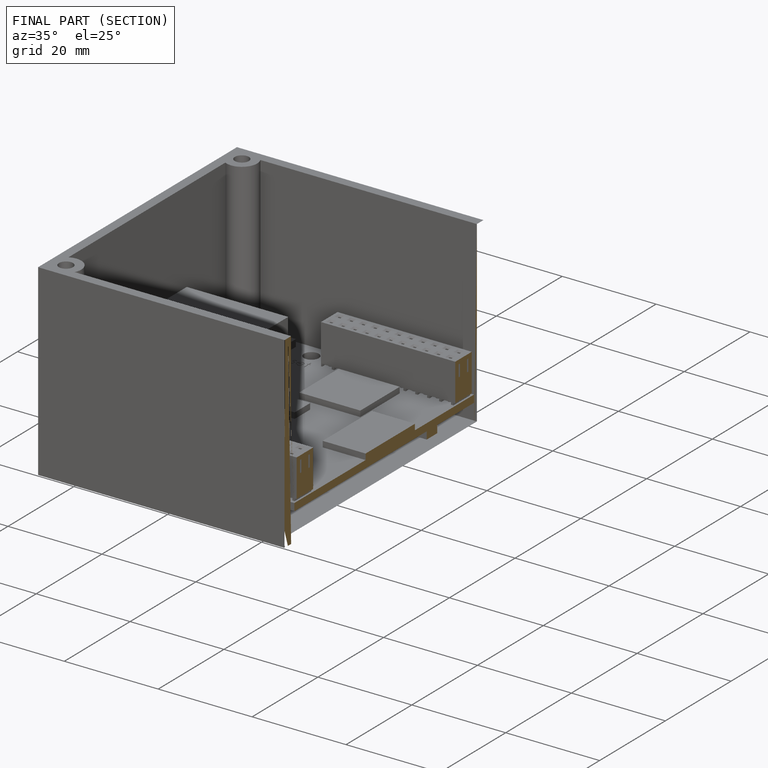
[diagram: finished part — half-section view (interior)]
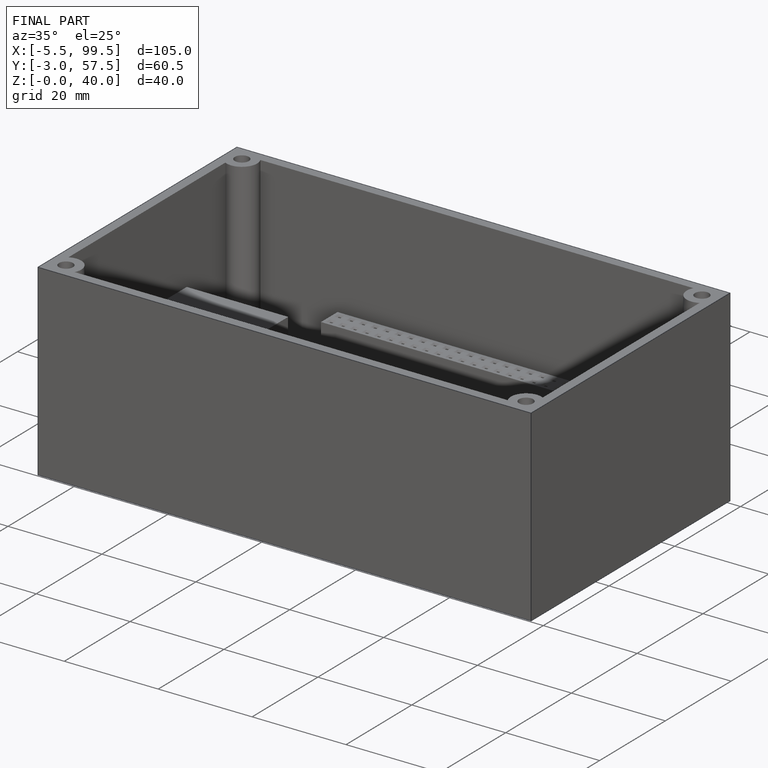
[diagram: finished part — iso view with bounding-box wireframe]
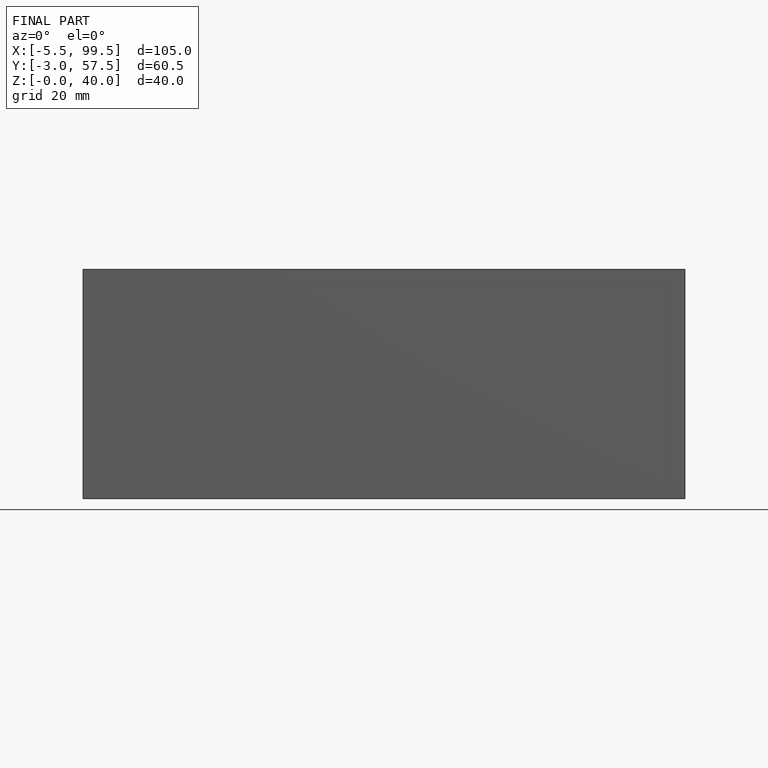
[diagram: finished part — front view with bounding-box wireframe]
